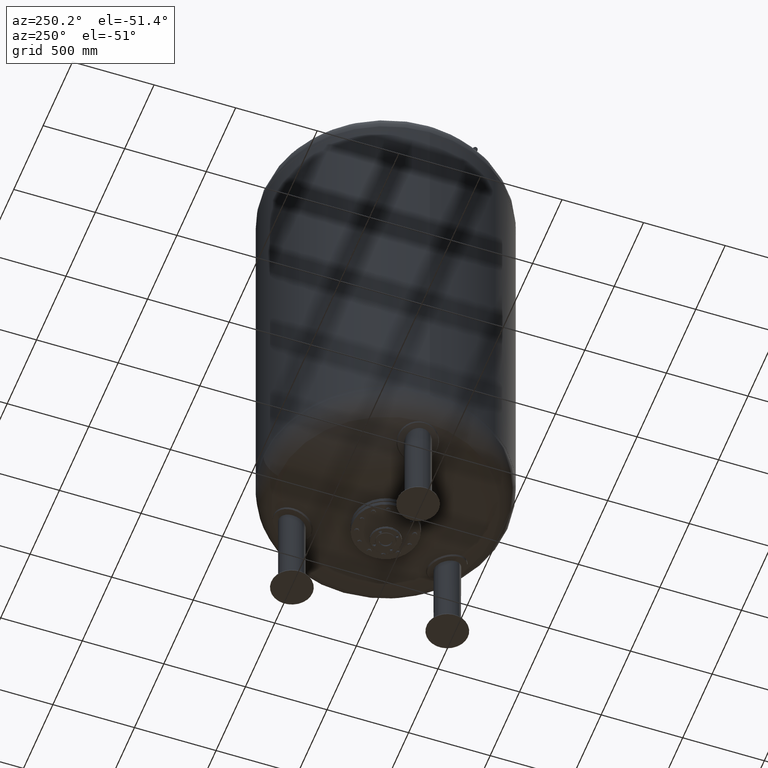
[diagram: clean part render]
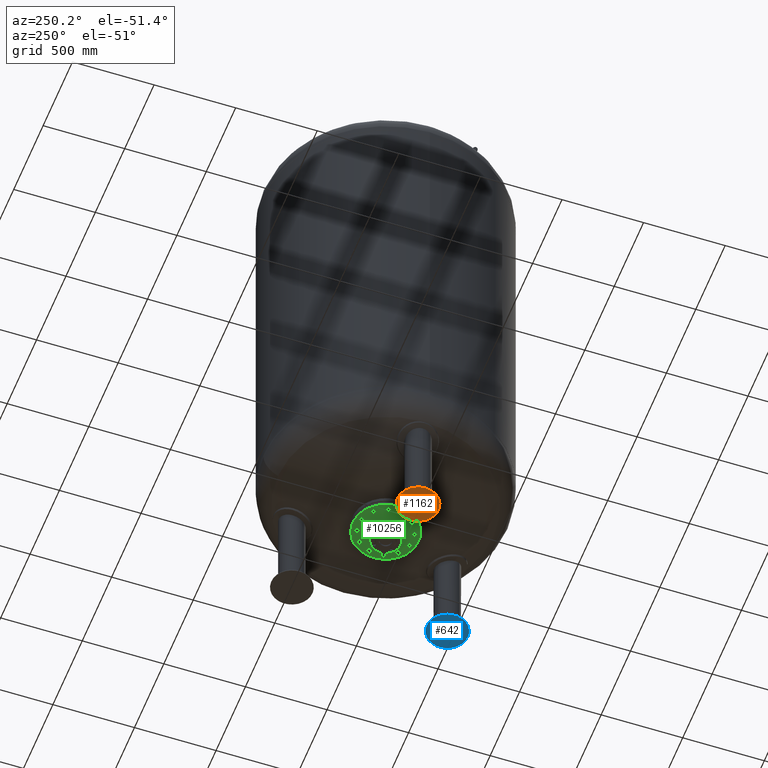
[diagram: same view with three faces highlighted in distinct colors, each labeled with its STEP entity id]
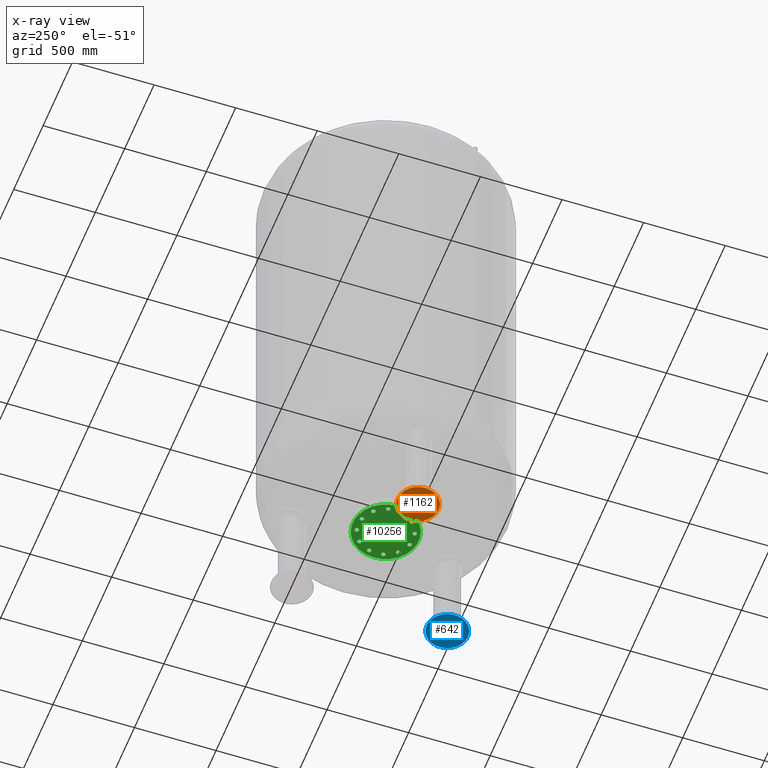
[diagram: x-ray of the same camera — body ghosted, the three highlighted faces saturated]
A machine part, auxiliary view with three faces highlighted in distinct colors.
The next image is the same camera in x-ray (body ghosted, the three faces saturated) — at least one of them is partly hidden behind the body in this view.
Their STEP definitions:

[orange] entity #1162 — the highlighted spherical surface has radius 570 mm.
#650=CARTESIAN_POINT('',(-676.311270189763040,1.807191E-014,14.171372612881115));
#651=VERTEX_POINT('',#650);
#660=CARTESIAN_POINT('',(-423.688729810237020,-2.833359E-014,14.171372612881102));
#661=VERTEX_POINT('',#660);
#662=CARTESIAN_POINT('',(-550.0,2.603239E-015,14.171372612881115));
#663=DIRECTION('',(0.0,0.0,-1.0));
#664=DIRECTION('',(-1.0,0.0,0.0));
#665=AXIS2_PLACEMENT_3D('',#662,#663,#664);
#666=CIRCLE('',#665,126.311270189762990);
#667=EDGE_CURVE('',#661,#651,#666,.T.);
#1143=CARTESIAN_POINT('',(-550.0,2.603239E-015,14.171372612881115));
#1144=DIRECTION('',(0.0,0.0,-1.0));
#1145=DIRECTION('',(-1.0,0.0,0.0));
#1146=AXIS2_PLACEMENT_3D('',#1143,#1144,#1145);
#1147=CIRCLE('',#1146,126.311270189762990);
#1148=EDGE_CURVE('',#651,#661,#1147,.T.);
#1153=CARTESIAN_POINT('',(-550.0,1.047073E-013,570.0));
#1154=DIRECTION('',(0.0,1.0,0.0));
#1155=DIRECTION('',(-1.0,0.0,0.0));
#1156=AXIS2_PLACEMENT_3D('',#1153,#1154,#1155);
#1157=SPHERICAL_SURFACE('',#1156,570.0);
#1158=ORIENTED_EDGE('',*,*,#1148,.T.);
#1159=ORIENTED_EDGE('',*,*,#667,.T.);
#1160=EDGE_LOOP('',(#1158,#1159));
#1161=FACE_OUTER_BOUND('',#1160,.T.);
#1162=ADVANCED_FACE('',(#1161),#1157,.T.);

[blue] entity #642 — the highlighted spherical surface has radius 570 mm.
#130=CARTESIAN_POINT('',(338.155635094881400,-585.702740850056100,14.171372612881115));
#131=VERTEX_POINT('',#130);
#140=CARTESIAN_POINT('',(211.844364905118400,-366.925203312826450,14.171372612881102));
#141=VERTEX_POINT('',#140);
#142=CARTESIAN_POINT('',(274.999999999999890,-476.313972081441250,14.171372612881115));
#143=DIRECTION('',(0.0,0.0,-1.0));
#144=DIRECTION('',(0.500000000000000,-0.866025403784439,0.0));
#145=AXIS2_PLACEMENT_3D('',#142,#143,#144);
#146=CIRCLE('',#145,126.311270189763010);
#147=EDGE_CURVE('',#141,#131,#146,.T.);
#623=CARTESIAN_POINT('',(274.999999999999890,-476.313972081441250,14.171372612881115));
#624=DIRECTION('',(0.0,0.0,-1.0));
#625=DIRECTION('',(0.500000000000000,-0.866025403784439,0.0));
#626=AXIS2_PLACEMENT_3D('',#623,#624,#625);
#627=CIRCLE('',#626,126.311270189763010);
#628=EDGE_CURVE('',#131,#141,#627,.T.);
#633=CARTESIAN_POINT('',(274.999999999999770,-476.313972081441310,570.0));
#634=DIRECTION('',(-0.866025403784439,-0.500000000000000,-1.836970E-016));
#635=DIRECTION('',(0.500000000000000,-0.866025403784439,0.0));
#636=AXIS2_PLACEMENT_3D('',#633,#634,#635);
#637=SPHERICAL_SURFACE('',#636,570.0);
#638=ORIENTED_EDGE('',*,*,#628,.T.);
#639=ORIENTED_EDGE('',*,*,#147,.T.);
#640=EDGE_LOOP('',(#638,#639));
#641=FACE_OUTER_BOUND('',#640,.T.);
#642=ADVANCED_FACE('',(#641),#637,.T.);

[green] entity #10256 — the highlighted planar face has unit normal (0, 0, -1).
#1692=CARTESIAN_POINT('',(202.500000000000000,-9.184851E-015,406.0));
#1693=VERTEX_POINT('',#1692);
#1709=CARTESIAN_POINT('',(-202.500000000000000,-3.398313E-014,406.0));
#1710=VERTEX_POINT('',#1709);
#1717=CARTESIAN_POINT('',(0.0,-9.184851E-015,406.0));
#1718=DIRECTION('',(0.0,0.0,1.0));
#1719=DIRECTION('',(1.0,0.0,0.0));
#1720=AXIS2_PLACEMENT_3D('',#1717,#1718,#1719);
#1721=CIRCLE('',#1720,202.500000000000000);
#1722=EDGE_CURVE('',#1710,#1693,#1721,.T.);
#3672=CARTESIAN_POINT('',(0.0,38.049999999999990,406.0));
#3673=VERTEX_POINT('',#3672);
#3689=CARTESIAN_POINT('',(-4.659627E-015,-38.050000000000011,406.0));
#3690=VERTEX_POINT('',#3689);
#3697=CARTESIAN_POINT('',(0.0,-9.184851E-015,406.0));
#3698=DIRECTION('',(0.0,0.0,1.0));
#3699=DIRECTION('',(0.0,1.0,0.0));
#3700=AXIS2_PLACEMENT_3D('',#3697,#3698,#3699);
#3701=CIRCLE('',#3700,38.049999999999997);
#3702=EDGE_CURVE('',#3673,#3690,#3701,.T.);
#3713=CARTESIAN_POINT('',(0.0,-9.184851E-015,406.0));
#3714=DIRECTION('',(0.0,0.0,1.0));
#3715=DIRECTION('',(0.0,1.0,0.0));
#3716=AXIS2_PLACEMENT_3D('',#3713,#3714,#3715);
#3717=CIRCLE('',#3716,38.049999999999997);
#3718=EDGE_CURVE('',#3690,#3673,#3717,.T.);
#7746=CARTESIAN_POINT('',(-157.729139400922860,30.104983413641001,406.0));
#7747=VERTEX_POINT('',#7746);
#7748=CARTESIAN_POINT('',(-148.288440171855850,40.247625971983254,406.0));
#7749=VERTEX_POINT('',#7748);
#7750=CARTESIAN_POINT('',(-157.729139400922860,30.104983413641001,406.0));
#7751=DIRECTION('',(0.681323780155013,0.731982176419128,0.0));
#7752=VECTOR('',#7751,13.856406460551087);
#7753=LINE('',#7750,#7752);
#7754=EDGE_CURVE('',#7747,#7749,#7753,.T.);
#7786=CARTESIAN_POINT('',(-171.233275132485970,33.209547496330096,406.0));
#7787=VERTEX_POINT('',#7786);
#7788=CARTESIAN_POINT('',(-171.233275132485970,33.209547496330096,406.0));
#7789=DIRECTION('',(0.974577049973894,-0.224052613607122,0.0));
#7790=VECTOR('',#7789,13.856406460551117);
#7791=LINE('',#7788,#7790);
#7792=EDGE_CURVE('',#7787,#7747,#7791,.T.);
#7817=CARTESIAN_POINT('',(-175.296711634982050,46.456754137361408,406.0));
#7818=VERTEX_POINT('',#7817);
#7819=CARTESIAN_POINT('',(-175.296711634982050,46.456754137361408,406.0));
#7820=DIRECTION('',(0.293253269818881,-0.956034790026249,0.0));
#7821=VECTOR('',#7820,13.856406460551076);
#7822=LINE('',#7819,#7821);
#7823=EDGE_CURVE('',#7818,#7787,#7822,.T.);
#7848=CARTESIAN_POINT('',(-152.351876674351930,53.494832613014573,406.0));
#7849=VERTEX_POINT('',#7848);
#7850=CARTESIAN_POINT('',(-148.288440171855850,40.247625971983254,406.0));
#7851=DIRECTION('',(-0.293253269818881,0.956034790026249,0.0));
#7852=VECTOR('',#7851,13.856406460551083);
#7853=LINE('',#7850,#7852);
#7854=EDGE_CURVE('',#7749,#7849,#7853,.T.);
#7879=CARTESIAN_POINT('',(-165.856012405915040,56.599396695703675,406.0));
#7880=VERTEX_POINT('',#7879);
#7881=CARTESIAN_POINT('',(-152.351876674351930,53.494832613014573,406.0));
#7882=DIRECTION('',(-0.974577049973894,0.224052613607123,0.0));
#7883=VECTOR('',#7882,13.856406460551119);
#7884=LINE('',#7881,#7883);
#7885=EDGE_CURVE('',#7849,#7880,#7884,.T.);
#7910=CARTESIAN_POINT('',(-165.856012405915040,56.599396695703675,406.0));
#7911=DIRECTION('',(-0.681323780155012,-0.731982176419129,0.0));
#7912=VECTOR('',#7911,13.856406460551096);
#7913=LINE('',#7910,#7912);
#7914=EDGE_CURVE('',#7880,#7818,#7913,.T.);
#7946=CARTESIAN_POINT('',(-121.544949931435720,104.936250117183760,406.0));
#7947=VERTEX_POINT('',#7946);
#7948=CARTESIAN_POINT('',(-108.297743290404380,108.999686619679820,406.0));
#7949=VERTEX_POINT('',#7948);
#7950=CARTESIAN_POINT('',(-121.544949931435720,104.936250117183760,406.0));
#7951=DIRECTION('',(0.956034790026250,0.293253269818880,0.0));
#7952=VECTOR('',#7951,13.856406460551101);
#7953=LINE('',#7950,#7952);
#7954=EDGE_CURVE('',#7947,#7949,#7953,.T.);
#7986=CARTESIAN_POINT('',(-131.687592489777960,114.376949346250780,406.0));
#7987=VERTEX_POINT('',#7986);
#7988=CARTESIAN_POINT('',(-131.687592489777960,114.376949346250780,406.0));
#7989=DIRECTION('',(0.731982176419127,-0.681323780155014,0.0));
#7990=VECTOR('',#7989,13.856406460551080);
#7991=LINE('',#7988,#7990);
#7992=EDGE_CURVE('',#7987,#7947,#7991,.T.);
#8017=CARTESIAN_POINT('',(-128.583028407088880,127.881085077813880,406.0));
#8018=VERTEX_POINT('',#8017);
#8019=CARTESIAN_POINT('',(-128.583028407088880,127.881085077813880,406.0));
#8020=DIRECTION('',(-0.224052613607122,-0.974577049973894,0.0));
#8021=VECTOR('',#8020,13.856406460551099);
#8022=LINE('',#8019,#8021);
#8023=EDGE_CURVE('',#8018,#7987,#8022,.T.);
#8048=CARTESIAN_POINT('',(-105.193179207715300,122.503822351242900,406.0));
#8049=VERTEX_POINT('',#8048);
#8050=CARTESIAN_POINT('',(-108.297743290404380,108.999686619679820,406.0));
#8051=DIRECTION('',(0.224052613607122,0.974577049973894,0.0));
#8052=VECTOR('',#8051,13.856406460551087);
#8053=LINE('',#8050,#8052);
#8054=EDGE_CURVE('',#7949,#8049,#8053,.T.);
#8079=CARTESIAN_POINT('',(-115.335821766057560,131.944521580309950,406.0));
#8080=VERTEX_POINT('',#8079);
#8081=CARTESIAN_POINT('',(-105.193179207715300,122.503822351242900,406.0));
#8082=DIRECTION('',(-0.731982176419127,0.681323780155014,0.0));
#8083=VECTOR('',#8082,13.856406460551121);
#8084=LINE('',#8081,#8083);
#8085=EDGE_CURVE('',#8049,#8080,#8084,.T.);
#8110=CARTESIAN_POINT('',(-115.335821766057560,131.944521580309950,406.0));
#8111=DIRECTION('',(-0.956034790026249,-0.293253269818881,0.0));
#8112=VECTOR('',#8111,13.856406460551076);
#8113=LINE('',#8110,#8112);
#8114=EDGE_CURVE('',#8080,#8018,#8113,.T.);
#8146=CARTESIAN_POINT('',(-52.792889283739193,151.649933345076730,406.0));
#8147=VERTEX_POINT('',#8146);
#8148=CARTESIAN_POINT('',(-39.288753552176118,148.545369262387680,406.0));
#8149=VERTEX_POINT('',#8148);
#8150=CARTESIAN_POINT('',(-52.792889283739193,151.649933345076730,406.0));
#8151=DIRECTION('',(0.974577049973894,-0.224052613607120,0.0));
#8152=VECTOR('',#8151,13.856406460551073);
#8153=LINE('',#8150,#8152);
#8154=EDGE_CURVE('',#8147,#8149,#8153,.T.);
#8186=CARTESIAN_POINT('',(-56.856325786235274,164.897139986108100,406.0));
#8187=VERTEX_POINT('',#8186);
#8188=CARTESIAN_POINT('',(-56.856325786235274,164.897139986108100,406.0));
#8189=DIRECTION('',(0.293253269818881,-0.956034790026249,0.0));
#8190=VECTOR('',#8189,13.856406460551133);
#8191=LINE('',#8188,#8190);
#8192=EDGE_CURVE('',#8187,#8147,#8191,.T.);
#8217=CARTESIAN_POINT('',(-47.415626557168267,175.039782544450330,406.0));
#8218=VERTEX_POINT('',#8217);
#8219=CARTESIAN_POINT('',(-47.415626557168267,175.039782544450330,406.0));
#8220=DIRECTION('',(-0.681323780155014,-0.731982176419128,0.0));
#8221=VECTOR('',#8220,13.856406460551069);
#8222=LINE('',#8219,#8221);
#8223=EDGE_CURVE('',#8218,#8187,#8222,.T.);
#8248=CARTESIAN_POINT('',(-29.848054323109103,158.688011820729910,406.0));
#8249=VERTEX_POINT('',#8248);
#8250=CARTESIAN_POINT('',(-39.288753552176118,148.545369262387680,406.0));
#8251=DIRECTION('',(0.681323780155014,0.731982176419127,0.0));
#8252=VECTOR('',#8251,13.856406460551076);
#8253=LINE('',#8250,#8252);
#8254=EDGE_CURVE('',#8149,#8249,#8253,.T.);
#8279=CARTESIAN_POINT('',(-33.911490825605156,171.935218461761250,406.0));
#8280=VERTEX_POINT('',#8279);
#8281=CARTESIAN_POINT('',(-29.848054323109103,158.688011820729910,406.0));
#8282=DIRECTION('',(-0.293253269818879,0.956034790026250,0.0));
#8283=VECTOR('',#8282,13.856406460551097);
#8284=LINE('',#8281,#8283);
#8285=EDGE_CURVE('',#8249,#8280,#8284,.T.);
#8310=CARTESIAN_POINT('',(-33.911490825605156,171.935218461761250,406.0));
#8311=DIRECTION('',(-0.974577049973894,0.224052613607121,0.0));
#8312=VECTOR('',#8311,13.856406460551113);
#8313=LINE('',#8310,#8312);
#8314=EDGE_CURVE('',#8280,#8218,#8313,.T.);
#8346=CARTESIAN_POINT('',(30.104983413641008,157.729139400922860,406.0));
#8347=VERTEX_POINT('',#8346);
#8348=CARTESIAN_POINT('',(40.247625971983268,148.288440171855850,406.0));
#8349=VERTEX_POINT('',#8348);
#8350=CARTESIAN_POINT('',(30.104983413641008,157.729139400922860,406.0));
#8351=DIRECTION('',(0.731982176419128,-0.681323780155013,0.0));
#8352=VECTOR('',#8351,13.856406460551090);
#8353=LINE('',#8350,#8352);
#8354=EDGE_CURVE('',#8347,#8349,#8353,.T.);
#8386=CARTESIAN_POINT('',(33.209547496330110,171.233275132485970,406.0));
#8387=VERTEX_POINT('',#8386);
#8388=CARTESIAN_POINT('',(33.209547496330110,171.233275132485970,406.0));
#8389=DIRECTION('',(-0.224052613607123,-0.974577049973894,0.0));
#8390=VECTOR('',#8389,13.856406460551119);
#8391=LINE('',#8388,#8390);
#8392=EDGE_CURVE('',#8387,#8347,#8391,.T.);
#8417=CARTESIAN_POINT('',(46.456754137361422,175.296711634982050,406.0));
#8418=VERTEX_POINT('',#8417);
#8419=CARTESIAN_POINT('',(46.456754137361422,175.296711634982050,406.0));
#8420=DIRECTION('',(-0.956034790026249,-0.293253269818881,0.0));
#8421=VECTOR('',#8420,13.856406460551076);
#8422=LINE('',#8419,#8421);
#8423=EDGE_CURVE('',#8418,#8387,#8422,.T.);
#8448=CARTESIAN_POINT('',(53.494832613014587,152.351876674351930,406.0));
#8449=VERTEX_POINT('',#8448);
#8450=CARTESIAN_POINT('',(40.247625971983268,148.288440171855850,406.0));
#8451=DIRECTION('',(0.956034790026249,0.293253269818881,0.0));
#8452=VECTOR('',#8451,13.856406460551083);
#8453=LINE('',#8450,#8452);
#8454=EDGE_CURVE('',#8349,#8449,#8453,.T.);
#8479=CARTESIAN_POINT('',(56.599396695703689,165.856012405915040,406.0));
#8480=VERTEX_POINT('',#8479);
#8481=CARTESIAN_POINT('',(53.494832613014587,152.351876674351930,406.0));
#8482=DIRECTION('',(0.224052613607123,0.974577049973894,0.0));
#8483=VECTOR('',#8482,13.856406460551119);
#8484=LINE('',#8481,#8483);
#8485=EDGE_CURVE('',#8449,#8480,#8484,.T.);
#8510=CARTESIAN_POINT('',(56.599396695703689,165.856012405915040,406.0));
#8511=DIRECTION('',(-0.731982176419129,0.681323780155012,0.0));
#8512=VECTOR('',#8511,13.856406460551096);
#8513=LINE('',#8510,#8512);
#8514=EDGE_CURVE('',#8480,#8418,#8513,.T.);
#8546=CARTESIAN_POINT('',(104.936250117183700,121.544949931435750,406.0));
#8547=VERTEX_POINT('',#8546);
#8548=CARTESIAN_POINT('',(108.999686619679760,108.297743290404440,406.0));
#8549=VERTEX_POINT('',#8548);
#8550=CARTESIAN_POINT('',(104.936250117183700,121.544949931435750,406.0));
#8551=DIRECTION('',(0.293253269818880,-0.956034790026249,0.0));
#8552=VECTOR('',#8551,13.856406460551073);
#8553=LINE('',#8550,#8552);
#8554=EDGE_CURVE('',#8547,#8549,#8553,.T.);
#8586=CARTESIAN_POINT('',(114.376949346250730,131.687592489778010,406.0));
#8587=VERTEX_POINT('',#8586);
#8588=CARTESIAN_POINT('',(114.376949346250730,131.687592489778010,406.0));
#8589=DIRECTION('',(-0.681323780155013,-0.731982176419128,0.0));
#8590=VECTOR('',#8589,13.856406460551101);
#8591=LINE('',#8588,#8590);
#8592=EDGE_CURVE('',#8587,#8547,#8591,.T.);
#8617=CARTESIAN_POINT('',(127.881085077813810,128.583028407088930,406.0));
#8618=VERTEX_POINT('',#8617);
#8619=CARTESIAN_POINT('',(127.881085077813810,128.583028407088930,406.0));
#8620=DIRECTION('',(-0.974577049973894,0.224052613607122,0.0));
#8621=VECTOR('',#8620,13.856406460551087);
#8622=LINE('',#8619,#8621);
#8623=EDGE_CURVE('',#8618,#8587,#8622,.T.);
#8648=CARTESIAN_POINT('',(122.503822351242850,105.193179207715360,406.0));
#8649=VERTEX_POINT('',#8648);
#8650=CARTESIAN_POINT('',(108.999686619679760,108.297743290404440,406.0));
#8651=DIRECTION('',(0.974577049973894,-0.224052613607122,0.0));
#8652=VECTOR('',#8651,13.856406460551087);
#8653=LINE('',#8650,#8652);
#8654=EDGE_CURVE('',#8549,#8649,#8653,.T.);
#8679=CARTESIAN_POINT('',(131.944521580309900,115.335821766057620,406.0));
#8680=VERTEX_POINT('',#8679);
#8681=CARTESIAN_POINT('',(122.503822351242850,105.193179207715360,406.0));
#8682=DIRECTION('',(0.681323780155014,0.731982176419127,0.0));
#8683=VECTOR('',#8682,13.856406460551121);
#8684=LINE('',#8681,#8683);
#8685=EDGE_CURVE('',#8649,#8680,#8684,.T.);
#8710=CARTESIAN_POINT('',(131.944521580309900,115.335821766057620,406.0));
#8711=DIRECTION('',(-0.293253269818882,0.956034790026249,0.0));
#8712=VECTOR('',#8711,13.856406460551081);
#8713=LINE('',#8710,#8712);
#8714=EDGE_CURVE('',#8680,#8618,#8713,.T.);
#8746=CARTESIAN_POINT('',(151.649933345076730,52.792889283739200,406.0));
#8747=VERTEX_POINT('',#8746);
#8748=CARTESIAN_POINT('',(148.545369262387650,39.288753552176111,406.0));
#8749=VERTEX_POINT('',#8748);
#8750=CARTESIAN_POINT('',(151.649933345076730,52.792889283739200,406.0));
#8751=DIRECTION('',(-0.224052613607122,-0.974577049973894,0.0));
#8752=VECTOR('',#8751,13.856406460551092);
#8753=LINE('',#8750,#8752);
#8754=EDGE_CURVE('',#8747,#8749,#8753,.T.);
#8786=CARTESIAN_POINT('',(164.897139986108100,56.856325786235281,406.0));
#8787=VERTEX_POINT('',#8786);
#8788=CARTESIAN_POINT('',(164.897139986108100,56.856325786235281,406.0));
#8789=DIRECTION('',(-0.956034790026249,-0.293253269818881,0.0));
#8790=VECTOR('',#8789,13.856406460551133);
#8791=LINE('',#8788,#8790);
#8792=EDGE_CURVE('',#8787,#8747,#8791,.T.);
#8817=CARTESIAN_POINT('',(175.039782544450300,47.415626557168245,406.0));
#8818=VERTEX_POINT('',#8817);
#8819=CARTESIAN_POINT('',(175.039782544450300,47.415626557168245,406.0));
#8820=DIRECTION('',(-0.731982176419126,0.681323780155016,0.0));
#8821=VECTOR('',#8820,13.856406460551069);
#8822=LINE('',#8819,#8821);
#8823=EDGE_CURVE('',#8818,#8787,#8822,.T.);
#8848=CARTESIAN_POINT('',(158.688011820729910,29.848054323109103,406.0));
#8849=VERTEX_POINT('',#8848);
#8850=CARTESIAN_POINT('',(148.545369262387650,39.288753552176111,406.0));
#8851=DIRECTION('',(0.731982176419128,-0.681323780155013,0.0));
#8852=VECTOR('',#8851,13.856406460551090);
#8853=LINE('',#8850,#8852);
#8854=EDGE_CURVE('',#8749,#8849,#8853,.T.);
#8879=CARTESIAN_POINT('',(171.935218461761250,33.911490825605156,406.0));
#8880=VERTEX_POINT('',#8879);
#8881=CARTESIAN_POINT('',(158.688011820729910,29.848054323109103,406.0));
#8882=DIRECTION('',(0.956034790026250,0.293253269818879,0.0));
#8883=VECTOR('',#8882,13.856406460551097);
#8884=LINE('',#8881,#8883);
#8885=EDGE_CURVE('',#8849,#8880,#8884,.T.);
#8910=CARTESIAN_POINT('',(171.935218461761250,33.911490825605156,406.0));
#8911=DIRECTION('',(0.224052613607120,0.974577049973894,0.0));
#8912=VECTOR('',#8911,13.856406460551087);
#8913=LINE('',#8910,#8912);
#8914=EDGE_CURVE('',#8880,#8818,#8913,.T.);
#8946=CARTESIAN_POINT('',(157.729139400922860,-30.104983413640994,406.0));
#8947=VERTEX_POINT('',#8946);
#8948=CARTESIAN_POINT('',(148.288440171855850,-40.247625971983261,406.0));
#8949=VERTEX_POINT('',#8948);
#8950=CARTESIAN_POINT('',(157.729139400922860,-30.104983413640994,406.0));
#8951=DIRECTION('',(-0.681323780155012,-0.731982176419129,0.0));
#8952=VECTOR('',#8951,13.856406460551096);
#8953=LINE('',#8950,#8952);
#8954=EDGE_CURVE('',#8947,#8949,#8953,.T.);
#8986=CARTESIAN_POINT('',(171.233275132486000,-33.209547496330110,406.0));
#8987=VERTEX_POINT('',#8986);
#8988=CARTESIAN_POINT('',(171.233275132486000,-33.209547496330110,406.0));
#8989=DIRECTION('',(-0.974577049973894,0.224052613607123,0.0));
#8990=VECTOR('',#8989,13.856406460551149);
#8991=LINE('',#8988,#8990);
#8992=EDGE_CURVE('',#8987,#8947,#8991,.T.);
#9017=CARTESIAN_POINT('',(175.296711634982050,-46.456754137361415,406.0));
#9018=VERTEX_POINT('',#9017);
#9019=CARTESIAN_POINT('',(175.296711634982050,-46.456754137361415,406.0));
#9020=DIRECTION('',(-0.293253269818880,0.956034790026250,0.0));
#9021=VECTOR('',#9020,13.856406460551062);
#9022=LINE('',#9019,#9021);
#9023=EDGE_CURVE('',#9018,#8987,#9022,.T.);
#9048=CARTESIAN_POINT('',(152.351876674351960,-53.494832613014594,406.0));
#9049=VERTEX_POINT('',#9048);
#9050=CARTESIAN_POINT('',(148.288440171855850,-40.247625971983261,406.0));
#9051=DIRECTION('',(0.293253269818883,-0.956034790026249,0.0));
#9052=VECTOR('',#9051,13.856406460551106);
#9053=LINE('',#9050,#9052);
#9054=EDGE_CURVE('',#8949,#9049,#9053,.T.);
#9079=CARTESIAN_POINT('',(165.856012405915070,-56.599396695703660,406.0));
#9080=VERTEX_POINT('',#9079);
#9081=CARTESIAN_POINT('',(152.351876674351960,-53.494832613014594,406.0));
#9082=DIRECTION('',(0.974577049973894,-0.224052613607121,0.0));
#9083=VECTOR('',#9082,13.856406460551110);
#9084=LINE('',#9081,#9083);
#9085=EDGE_CURVE('',#9049,#9080,#9084,.T.);
#9110=CARTESIAN_POINT('',(165.856012405915070,-56.599396695703660,406.0));
#9111=DIRECTION('',(0.681323780155012,0.731982176419129,0.0));
#9112=VECTOR('',#9111,13.856406460551062);
#9113=LINE('',#9110,#9112);
#9114=EDGE_CURVE('',#9080,#9018,#9113,.T.);
#9146=CARTESIAN_POINT('',(121.544949931435750,-104.936250117183680,406.0));
#9147=VERTEX_POINT('',#9146);
#9148=CARTESIAN_POINT('',(108.297743290404440,-108.999686619679760,406.0));
#9149=VERTEX_POINT('',#9148);
#9150=CARTESIAN_POINT('',(121.544949931435750,-104.936250117183680,406.0));
#9151=DIRECTION('',(-0.956034790026249,-0.293253269818882,0.0));
#9152=VECTOR('',#9151,13.856406460551081);
#9153=LINE('',#9150,#9152);
#9154=EDGE_CURVE('',#9147,#9149,#9153,.T.);
#9186=CARTESIAN_POINT('',(131.687592489778010,-114.376949346250730,406.0));
#9187=VERTEX_POINT('',#9186);
#9188=CARTESIAN_POINT('',(131.687592489778010,-114.376949346250730,406.0));
#9189=DIRECTION('',(-0.731982176419127,0.681323780155014,0.0));
#9190=VECTOR('',#9189,13.856406460551121);
#9191=LINE('',#9188,#9190);
#9192=EDGE_CURVE('',#9187,#9147,#9191,.T.);
#9217=CARTESIAN_POINT('',(128.583028407088930,-127.881085077813790,406.0));
#9218=VERTEX_POINT('',#9217);
#9219=CARTESIAN_POINT('',(128.583028407088930,-127.881085077813790,406.0));
#9220=DIRECTION('',(0.224052613607122,0.974577049973894,0.0));
#9221=VECTOR('',#9220,13.856406460551071);
#9222=LINE('',#9219,#9221);
#9223=EDGE_CURVE('',#9218,#9187,#9222,.T.);
#9248=CARTESIAN_POINT('',(105.193179207715360,-122.503822351242850,406.0));
#9249=VERTEX_POINT('',#9248);
#9250=CARTESIAN_POINT('',(108.297743290404440,-108.999686619679760,406.0));
#9251=DIRECTION('',(-0.224052613607122,-0.974577049973894,0.0));
#9252=VECTOR('',#9251,13.856406460551087);
#9253=LINE('',#9250,#9252);
#9254=EDGE_CURVE('',#9149,#9249,#9253,.T.);
#9279=CARTESIAN_POINT('',(115.335821766057620,-131.944521580309900,406.0));
#9280=VERTEX_POINT('',#9279);
#9281=CARTESIAN_POINT('',(105.193179207715360,-122.503822351242850,406.0));
#9282=DIRECTION('',(0.731982176419127,-0.681323780155014,0.0));
#9283=VECTOR('',#9282,13.856406460551121);
#9284=LINE('',#9281,#9283);
#9285=EDGE_CURVE('',#9249,#9280,#9284,.T.);
#9310=CARTESIAN_POINT('',(115.335821766057620,-131.944521580309900,406.0));
#9311=DIRECTION('',(0.956034790026249,0.293253269818883,0.0));
#9312=VECTOR('',#9311,13.856406460551085);
#9313=LINE('',#9310,#9312);
#9314=EDGE_CURVE('',#9280,#9218,#9313,.T.);
#9346=CARTESIAN_POINT('',(52.792889283739228,-151.649933345076730,406.0));
#9347=VERTEX_POINT('',#9346);
#9348=CARTESIAN_POINT('',(39.288753552176132,-148.545369262387680,406.0));
#9349=VERTEX_POINT('',#9348);
#9350=CARTESIAN_POINT('',(52.792889283739228,-151.649933345076730,406.0));
#9351=DIRECTION('',(-0.974577049973894,0.224052613607120,0.0));
#9352=VECTOR('',#9351,13.856406460551094);
#9353=LINE('',#9350,#9352);
#9354=EDGE_CURVE('',#9347,#9349,#9353,.T.);
#9386=CARTESIAN_POINT('',(56.856325786235296,-164.897139986108100,406.0));
#9387=VERTEX_POINT('',#9386);
#9388=CARTESIAN_POINT('',(56.856325786235296,-164.897139986108100,406.0));
#9389=DIRECTION('',(-0.293253269818880,0.956034790026250,0.0));
#9390=VECTOR('',#9389,13.856406460551129);
#9391=LINE('',#9388,#9390);
#9392=EDGE_CURVE('',#9387,#9347,#9391,.T.);
#9417=CARTESIAN_POINT('',(47.415626557168281,-175.039782544450300,406.0));
#9418=VERTEX_POINT('',#9417);
#9419=CARTESIAN_POINT('',(47.415626557168281,-175.039782544450300,406.0));
#9420=DIRECTION('',(0.681323780155015,0.731982176419126,0.0));
#9421=VECTOR('',#9420,13.856406460551055);
#9422=LINE('',#9419,#9421);
#9423=EDGE_CURVE('',#9418,#9387,#9422,.T.);
#9448=CARTESIAN_POINT('',(29.848054323109121,-158.688011820729910,406.0));
#9449=VERTEX_POINT('',#9448);
#9450=CARTESIAN_POINT('',(39.288753552176132,-148.545369262387680,406.0));
#9451=DIRECTION('',(-0.681323780155014,-0.731982176419127,0.0));
#9452=VECTOR('',#9451,13.856406460551073);
#9453=LINE('',#9450,#9452);
#9454=EDGE_CURVE('',#9349,#9449,#9453,.T.);
#9479=CARTESIAN_POINT('',(33.911490825605199,-171.935218461761280,406.0));
#9480=VERTEX_POINT('',#9479);
#9481=CARTESIAN_POINT('',(29.848054323109121,-158.688011820729910,406.0));
#9482=DIRECTION('',(0.293253269818880,-0.956034790026249,0.0));
#9483=VECTOR('',#9482,13.856406460551133);
#9484=LINE('',#9481,#9483);
#9485=EDGE_CURVE('',#9449,#9480,#9484,.T.);
#9510=CARTESIAN_POINT('',(33.911490825605199,-171.935218461761280,406.0));
#9511=DIRECTION('',(0.974577049973895,-0.224052613607118,0.0));
#9512=VECTOR('',#9511,13.856406460551074);
#9513=LINE('',#9510,#9512);
#9514=EDGE_CURVE('',#9480,#9418,#9513,.T.);
#9546=CARTESIAN_POINT('',(-30.104983413640952,-157.729139400922890,406.0));
#9547=VERTEX_POINT('',#9546);
#9548=CARTESIAN_POINT('',(-40.247625971983211,-148.288440171855880,406.0));
#9549=VERTEX_POINT('',#9548);
#9550=CARTESIAN_POINT('',(-30.104983413640952,-157.729139400922890,406.0));
#9551=DIRECTION('',(-0.731982176419128,0.681323780155013,0.0));
#9552=VECTOR('',#9551,13.856406460551090);
#9553=LINE('',#9550,#9552);
#9554=EDGE_CURVE('',#9547,#9549,#9553,.T.);
#9586=CARTESIAN_POINT('',(-33.209547496330039,-171.233275132486000,406.0));
#9587=VERTEX_POINT('',#9586);
#9588=CARTESIAN_POINT('',(-33.209547496330039,-171.233275132486000,406.0));
#9589=DIRECTION('',(0.224052613607122,0.974577049973894,0.0));
#9590=VECTOR('',#9589,13.856406460551115);
#9591=LINE('',#9588,#9590);
#9592=EDGE_CURVE('',#9587,#9547,#9591,.T.);
#9617=CARTESIAN_POINT('',(-46.456754137361351,-175.296711634982070,406.0));
#9618=VERTEX_POINT('',#9617);
#9619=CARTESIAN_POINT('',(-46.456754137361351,-175.296711634982070,406.0));
#9620=DIRECTION('',(0.956034790026249,0.293253269818881,0.0));
#9621=VECTOR('',#9620,13.856406460551076);
#9622=LINE('',#9619,#9621);
#9623=EDGE_CURVE('',#9618,#9587,#9622,.T.);
#9648=CARTESIAN_POINT('',(-53.494832613014523,-152.351876674351960,406.0));
#9649=VERTEX_POINT('',#9648);
#9650=CARTESIAN_POINT('',(-40.247625971983211,-148.288440171855880,406.0));
#9651=DIRECTION('',(-0.956034790026249,-0.293253269818881,0.0));
#9652=VECTOR('',#9651,13.856406460551076);
#9653=LINE('',#9650,#9652);
#9654=EDGE_CURVE('',#9549,#9649,#9653,.T.);
#9679=CARTESIAN_POINT('',(-56.599396695703625,-165.856012405915070,406.0));
#9680=VERTEX_POINT('',#9679);
#9681=CARTESIAN_POINT('',(-53.494832613014523,-152.351876674351960,406.0));
#9682=DIRECTION('',(-0.224052613607123,-0.974577049973894,0.0));
#9683=VECTOR('',#9682,13.856406460551119);
#9684=LINE('',#9681,#9683);
#9685=EDGE_CURVE('',#9649,#9680,#9684,.T.);
#9710=CARTESIAN_POINT('',(-56.599396695703625,-165.856012405915070,406.0));
#9711=DIRECTION('',(0.731982176419129,-0.681323780155012,0.0));
#9712=VECTOR('',#9711,13.856406460551101);
#9713=LINE('',#9710,#9712);
#9714=EDGE_CURVE('',#9680,#9618,#9713,.T.);
#9746=CARTESIAN_POINT('',(-104.936250117183660,-121.544949931435800,406.0));
#9747=VERTEX_POINT('',#9746);
#9748=CARTESIAN_POINT('',(-108.999686619679750,-108.297743290404470,406.0));
#9749=VERTEX_POINT('',#9748);
#9750=CARTESIAN_POINT('',(-104.936250117183660,-121.544949931435800,406.0));
#9751=DIRECTION('',(-0.293253269818882,0.956034790026249,0.0));
#9752=VECTOR('',#9751,13.856406460551094);
#9753=LINE('',#9750,#9752);
#9754=EDGE_CURVE('',#9747,#9749,#9753,.T.);
#9786=CARTESIAN_POINT('',(-114.376949346250710,-131.687592489778040,406.0));
#9787=VERTEX_POINT('',#9786);
#9788=CARTESIAN_POINT('',(-114.376949346250710,-131.687592489778040,406.0));
#9789=DIRECTION('',(0.681323780155015,0.731982176419126,0.0));
#9790=VECTOR('',#9789,13.856406460551110);
#9791=LINE('',#9788,#9790);
#9792=EDGE_CURVE('',#9787,#9747,#9791,.T.);
#9817=CARTESIAN_POINT('',(-127.881085077813760,-128.583028407088960,406.0));
#9818=VERTEX_POINT('',#9817);
#9819=CARTESIAN_POINT('',(-127.881085077813760,-128.583028407088960,406.0));
#9820=DIRECTION('',(0.974577049973894,-0.224052613607122,0.0));
#9821=VECTOR('',#9820,13.856406460551058);
#9822=LINE('',#9819,#9821);
#9823=EDGE_CURVE('',#9818,#9787,#9822,.T.);
#9848=CARTESIAN_POINT('',(-122.503822351242830,-105.193179207715390,406.0));
#9849=VERTEX_POINT('',#9848);
#9850=CARTESIAN_POINT('',(-108.999686619679750,-108.297743290404470,406.0));
#9851=DIRECTION('',(-0.974577049973894,0.224052613607122,0.0));
#9852=VECTOR('',#9851,13.856406460551087);
#9853=LINE('',#9850,#9852);
#9854=EDGE_CURVE('',#9749,#9849,#9853,.T.);
#9879=CARTESIAN_POINT('',(-131.944521580309870,-115.335821766057650,406.0));
#9880=VERTEX_POINT('',#9879);
#9881=CARTESIAN_POINT('',(-122.503822351242830,-105.193179207715390,406.0));
#9882=DIRECTION('',(-0.681323780155014,-0.731982176419127,0.0));
#9883=VECTOR('',#9882,13.856406460551110);
#9884=LINE('',#9881,#9883);
#9885=EDGE_CURVE('',#9849,#9880,#9884,.T.);
#9910=CARTESIAN_POINT('',(-131.944521580309870,-115.335821766057650,406.0));
#9911=DIRECTION('',(0.293253269818883,-0.956034790026249,0.0));
#9912=VECTOR('',#9911,13.856406460551085);
#9913=LINE('',#9910,#9912);
#9914=EDGE_CURVE('',#9880,#9818,#9913,.T.);
#9946=CARTESIAN_POINT('',(-151.649933345076730,-52.792889283739243,406.0));
#9947=VERTEX_POINT('',#9946);
#9948=CARTESIAN_POINT('',(-148.545369262387650,-39.288753552176154,406.0));
#9949=VERTEX_POINT('',#9948);
#9950=CARTESIAN_POINT('',(-151.649933345076730,-52.792889283739243,406.0));
#9951=DIRECTION('',(0.224052613607122,0.974577049973894,0.0));
#9952=VECTOR('',#9951,13.856406460551092);
#9953=LINE('',#9950,#9952);
#9954=EDGE_CURVE('',#9947,#9949,#9953,.T.);
#9986=CARTESIAN_POINT('',(-164.897139986108070,-56.856325786235317,406.0));
#9987=VERTEX_POINT('',#9986);
#9988=CARTESIAN_POINT('',(-164.897139986108070,-56.856325786235317,406.0));
#9989=DIRECTION('',(0.956034790026249,0.293253269818881,0.0));
#9990=VECTOR('',#9989,13.856406460551105);
#9991=LINE('',#9988,#9990);
#9992=EDGE_CURVE('',#9987,#9947,#9991,.T.);
#10017=CARTESIAN_POINT('',(-175.039782544450300,-47.415626557168309,406.0));
#10018=VERTEX_POINT('',#10017);
#10019=CARTESIAN_POINT('',(-175.039782544450300,-47.415626557168309,406.0));
#10020=DIRECTION('',(0.731982176419128,-0.681323780155014,0.0));
#10021=VECTOR('',#10020,13.856406460551069);
#10022=LINE('',#10019,#10021);
#10023=EDGE_CURVE('',#10018,#9987,#10022,.T.);
#10048=CARTESIAN_POINT('',(-158.688011820729910,-29.848054323109139,406.0));
#10049=VERTEX_POINT('',#10048);
#10050=CARTESIAN_POINT('',(-148.545369262387650,-39.288753552176154,406.0));
#10051=DIRECTION('',(-0.731982176419128,0.681323780155013,0.0));
#10052=VECTOR('',#10051,13.856406460551096);
#10053=LINE('',#10050,#10052);
#10054=EDGE_CURVE('',#9949,#10049,#10053,.T.);
#10079=CARTESIAN_POINT('',(-171.935218461761250,-33.911490825605220,406.0));
#10080=VERTEX_POINT('',#10079);
#10081=CARTESIAN_POINT('',(-158.688011820729910,-29.848054323109139,406.0));
#10082=DIRECTION('',(-0.956034790026249,-0.293253269818881,0.0));
#10083=VECTOR('',#10082,13.856406460551106);
#10084=LINE('',#10081,#10083);
#10085=EDGE_CURVE('',#10049,#10080,#10084,.T.);
#10110=CARTESIAN_POINT('',(-171.935218461761250,-33.911490825605220,406.0));
#10111=DIRECTION('',(-0.224052613607120,-0.974577049973894,0.0));
#10112=VECTOR('',#10111,13.856406460551087);
#10113=LINE('',#10110,#10112);
#10114=EDGE_CURVE('',#10080,#10018,#10113,.T.);
#10141=CARTESIAN_POINT('',(101.250000000000000,-9.184851E-015,406.0));
#10142=DIRECTION('',(0.0,0.0,-1.0));
#10143=DIRECTION('',(0.0,1.0,0.0));
#10144=AXIS2_PLACEMENT_3D('',#10141,#10142,#10143);
#10145=PLANE('',#10144);
#10146=CARTESIAN_POINT('',(0.0,-9.184851E-015,406.0));
#10147=DIRECTION('',(0.0,0.0,1.0));
#10148=DIRECTION('',(1.0,0.0,0.0));
#10149=AXIS2_PLACEMENT_3D('',#10146,#10147,#10148);
#10150=CIRCLE('',#10149,202.500000000000000);
#10151=EDGE_CURVE('',#1693,#1710,#10150,.T.);
#10152=ORIENTED_EDGE('',*,*,#10151,.F.);
#10153=ORIENTED_EDGE('',*,*,#1722,.F.);
#10154=EDGE_LOOP('',(#10152,#10153));
#10155=FACE_OUTER_BOUND('',#10154,.T.);
#10156=ORIENTED_EDGE('',*,*,#3702,.T.);
#10157=ORIENTED_EDGE('',*,*,#3718,.T.);
#10158=EDGE_LOOP('',(#10156,#10157));
#10159=FACE_BOUND('',#10158,.T.);
#10160=ORIENTED_EDGE('',*,*,#7754,.T.);
#10161=ORIENTED_EDGE('',*,*,#7854,.T.);
#10162=ORIENTED_EDGE('',*,*,#7885,.T.);
#10163=ORIENTED_EDGE('',*,*,#7914,.T.);
#10164=ORIENTED_EDGE('',*,*,#7823,.T.);
#10165=ORIENTED_EDGE('',*,*,#7792,.T.);
#10166=EDGE_LOOP('',(#10160,#10161,#10162,#10163,#10164,#10165));
#10167=FACE_BOUND('',#10166,.T.);
#10168=ORIENTED_EDGE('',*,*,#7954,.T.);
#10169=ORIENTED_EDGE('',*,*,#8054,.T.);
#10170=ORIENTED_EDGE('',*,*,#8085,.T.);
#10171=ORIENTED_EDGE('',*,*,#8114,.T.);
#10172=ORIENTED_EDGE('',*,*,#8023,.T.);
#10173=ORIENTED_EDGE('',*,*,#7992,.T.);
#10174=EDGE_LOOP('',(#10168,#10169,#10170,#10171,#10172,#10173));
#10175=FACE_BOUND('',#10174,.T.);
#10176=ORIENTED_EDGE('',*,*,#8154,.T.);
#10177=ORIENTED_EDGE('',*,*,#8254,.T.);
#10178=ORIENTED_EDGE('',*,*,#8285,.T.);
#10179=ORIENTED_EDGE('',*,*,#8314,.T.);
#10180=ORIENTED_EDGE('',*,*,#8223,.T.);
#10181=ORIENTED_EDGE('',*,*,#8192,.T.);
#10182=EDGE_LOOP('',(#10176,#10177,#10178,#10179,#10180,#10181));
#10183=FACE_BOUND('',#10182,.T.);
#10184=ORIENTED_EDGE('',*,*,#8354,.T.);
#10185=ORIENTED_EDGE('',*,*,#8454,.T.);
#10186=ORIENTED_EDGE('',*,*,#8485,.T.);
#10187=ORIENTED_EDGE('',*,*,#8514,.T.);
#10188=ORIENTED_EDGE('',*,*,#8423,.T.);
#10189=ORIENTED_EDGE('',*,*,#8392,.T.);
#10190=EDGE_LOOP('',(#10184,#10185,#10186,#10187,#10188,#10189));
#10191=FACE_BOUND('',#10190,.T.);
#10192=ORIENTED_EDGE('',*,*,#8554,.T.);
#10193=ORIENTED_EDGE('',*,*,#8654,.T.);
#10194=ORIENTED_EDGE('',*,*,#8685,.T.);
#10195=ORIENTED_EDGE('',*,*,#8714,.T.);
#10196=ORIENTED_EDGE('',*,*,#8623,.T.);
#10197=ORIENTED_EDGE('',*,*,#8592,.T.);
#10198=EDGE_LOOP('',(#10192,#10193,#10194,#10195,#10196,#10197));
#10199=FACE_BOUND('',#10198,.T.);
#10200=ORIENTED_EDGE('',*,*,#8754,.T.);
#10201=ORIENTED_EDGE('',*,*,#8854,.T.);
#10202=ORIENTED_EDGE('',*,*,#8885,.T.);
#10203=ORIENTED_EDGE('',*,*,#8914,.T.);
#10204=ORIENTED_EDGE('',*,*,#8823,.T.);
#10205=ORIENTED_EDGE('',*,*,#8792,.T.);
#10206=EDGE_LOOP('',(#10200,#10201,#10202,#10203,#10204,#10205));
#10207=FACE_BOUND('',#10206,.T.);
#10208=ORIENTED_EDGE('',*,*,#8954,.T.);
#10209=ORIENTED_EDGE('',*,*,#9054,.T.);
#10210=ORIENTED_EDGE('',*,*,#9085,.T.);
#10211=ORIENTED_EDGE('',*,*,#9114,.T.);
#10212=ORIENTED_EDGE('',*,*,#9023,.T.);
#10213=ORIENTED_EDGE('',*,*,#8992,.T.);
#10214=EDGE_LOOP('',(#10208,#10209,#10210,#10211,#10212,#10213));
#10215=FACE_BOUND('',#10214,.T.);
#10216=ORIENTED_EDGE('',*,*,#9154,.T.);
#10217=ORIENTED_EDGE('',*,*,#9254,.T.);
#10218=ORIENTED_EDGE('',*,*,#9285,.T.);
#10219=ORIENTED_EDGE('',*,*,#9314,.T.);
#10220=ORIENTED_EDGE('',*,*,#9223,.T.);
#10221=ORIENTED_EDGE('',*,*,#9192,.T.);
#10222=EDGE_LOOP('',(#10216,#10217,#10218,#10219,#10220,#10221));
#10223=FACE_BOUND('',#10222,.T.);
#10224=ORIENTED_EDGE('',*,*,#9354,.T.);
#10225=ORIENTED_EDGE('',*,*,#9454,.T.);
#10226=ORIENTED_EDGE('',*,*,#9485,.T.);
#10227=ORIENTED_EDGE('',*,*,#9514,.T.);
#10228=ORIENTED_EDGE('',*,*,#9423,.T.);
#10229=ORIENTED_EDGE('',*,*,#9392,.T.);
#10230=EDGE_LOOP('',(#10224,#10225,#10226,#10227,#10228,#10229));
#10231=FACE_BOUND('',#10230,.T.);
#10232=ORIENTED_EDGE('',*,*,#9554,.T.);
#10233=ORIENTED_EDGE('',*,*,#9654,.T.);
#10234=ORIENTED_EDGE('',*,*,#9685,.T.);
#10235=ORIENTED_EDGE('',*,*,#9714,.T.);
#10236=ORIENTED_EDGE('',*,*,#9623,.T.);
#10237=ORIENTED_EDGE('',*,*,#9592,.T.);
#10238=EDGE_LOOP('',(#10232,#10233,#10234,#10235,#10236,#10237));
#10239=FACE_BOUND('',#10238,.T.);
#10240=ORIENTED_EDGE('',*,*,#9754,.T.);
#10241=ORIENTED_EDGE('',*,*,#9854,.T.);
#10242=ORIENTED_EDGE('',*,*,#9885,.T.);
#10243=ORIENTED_EDGE('',*,*,#9914,.T.);
#10244=ORIENTED_EDGE('',*,*,#9823,.T.);
#10245=ORIENTED_EDGE('',*,*,#9792,.T.);
#10246=EDGE_LOOP('',(#10240,#10241,#10242,#10243,#10244,#10245));
#10247=FACE_BOUND('',#10246,.T.);
#10248=ORIENTED_EDGE('',*,*,#9954,.T.);
#10249=ORIENTED_EDGE('',*,*,#10054,.T.);
#10250=ORIENTED_EDGE('',*,*,#10085,.T.);
#10251=ORIENTED_EDGE('',*,*,#10114,.T.);
#10252=ORIENTED_EDGE('',*,*,#10023,.T.);
#10253=ORIENTED_EDGE('',*,*,#9992,.T.);
#10254=EDGE_LOOP('',(#10248,#10249,#10250,#10251,#10252,#10253));
#10255=FACE_BOUND('',#10254,.T.);
#10256=ADVANCED_FACE('',(#10155,#10159,#10167,#10175,#10183,#10191,#10199,#10207,#10215,#10223,#10231,#10239,#10247,#10255),#10145,.T.);